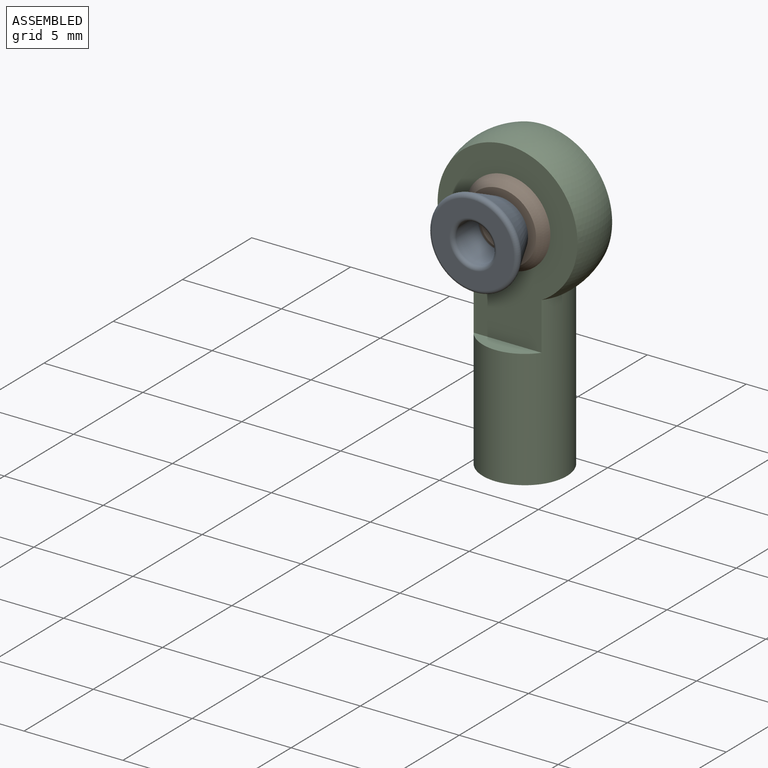
[diagram: assembled view]
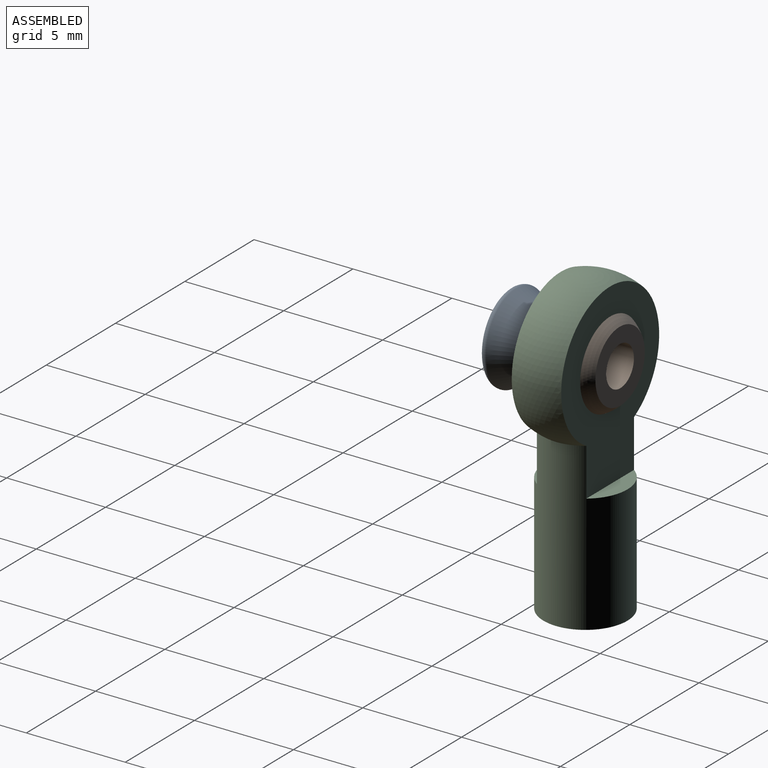
[diagram: assembled view, second angle]
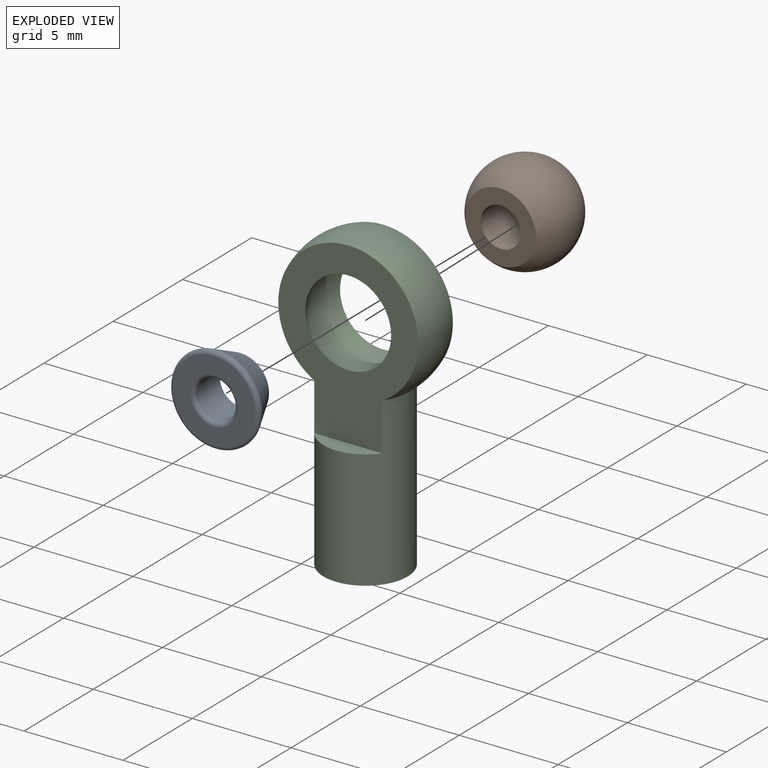
[diagram: exploded view]
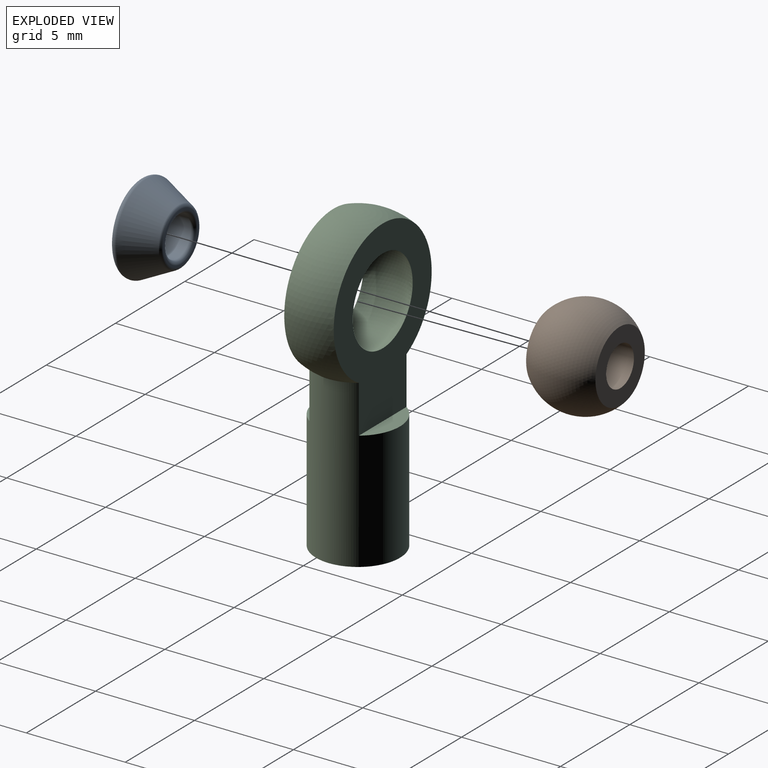
[diagram: exploded view, second angle]
FCSTD DOCUMENT  (FreeCAD 1.0R39285 (Git))
Label: M2RodEnd
License: All rights reserved
LicenseURL: http://en.wikipedia.org/wiki/All_rights_reserved
objects: App::Link×3, App::FeaturePython×3, Assembly::JointGroup×2, Assembly::AssemblyObject×2
EXTERNAL_REF file=RodEnds/M2RodEndBody.FCStd obj=Body
EXTERNAL_REF file=RodEnds/M2RodEndBall.FCStd obj=Body
EXTERNAL_REF file=RodEnds/HighAngleSpacers.FCStd obj=Body

FEATURE [App::Link] RodEndBody
  LinkPlacement = pos=(2.53768,2.53768,2.53768) rot=(0,0,1;0rad)
  LinkedObject = -> <external RodEnds/M2RodEndBody.FCStd>#Body
  Placement = pos=(2.53768,2.53768,2.53768) rot=(0,0,1;0rad)
FEATURE [App::Link] RodEndBall
  LinkPlacement = pos=(2.53768,2.53768,9.83258) rot=(0.020898,0.712821,-0.701035;3.09814rad)
  LinkedObject = -> <external RodEnds/M2RodEndBall.FCStd>#Body
  Placement = pos=(2.53768,2.53768,9.83258) rot=(0.020898,0.712821,-0.701035;3.09814rad)
FEATURE [App::FeaturePython] GroundedJoint  # Assembly grounded joint (typed FeaturePython)
  ObjectToGround = -> RodEndBody
  Placement = pos=(2.53768,2.53768,2.53768) rot=(0,0,1;0rad)
FEATURE [App::FeaturePython] Joint  label="Ball"  # Assembly joint (typed FeaturePython)
  Activated = true
  AngleMax = 0
  AngleMin = 0
  Detach1 = false
  Detach2 = false
  Distance = 0
  Distance2 = 0
  EnableAngleMax = false
  EnableAngleMin = false
  EnableLengthMax = false
  EnableLengthMin = false
  JointType = 4 (Ball)
  LengthMax = 0
  LengthMin = 0
  Placement1 = pos=(0,0,0) rot=(-0.707107,-0.707107,0;3.14159rad)
  Placement2 = pos=(-4.9e-15,8.4e-15,7.2949) rot=(0,0,1;1.5708rad)
  Reference1 = -> Assembly [RodEndBall.Revolution.Face4,RodEndBall.Revolution.Face4]
  Reference2 = -> Assembly [RodEndBody.Pocket.Face10,RodEndBody.Pocket.Face10]
FEATURE [App::Link] M2RodEnd
  LinkPlacement = pos=(2.54229,-0.211935,9.78688) rot=(-0.55766,0.591346,-0.582516;4.14342rad)
  LinkedObject = -> <external RodEnds/HighAngleSpacers.FCStd>#Body
  Placement = pos=(2.54229,-0.211935,9.78688) rot=(-0.55766,0.591346,-0.582516;4.14342rad)
FEATURE [Assembly::JointGroup] Joints001
FEATURE [Assembly::AssemblyObject] Assembly001
  Group = -> [Joints001]
  Origin = -> Origin001
  Type = Assembly
FEATURE [App::FeaturePython] Joint001  label="Fixed"  # Assembly joint (typed FeaturePython)
  Activated = true
  AngleMax = 0
  AngleMin = 0
  Detach1 = false
  Detach2 = false
  Distance = 0
  Distance2 = 0
  EnableAngleMax = false
  EnableAngleMin = false
  EnableLengthMax = false
  EnableLengthMin = false
  JointType = 0 (Fixed)
  LengthMax = 0
  LengthMin = 0
  Placement1 = pos=(-1.8e-15,4e-16,-1) rot=(-1,0,0;3.14159rad)
  Placement2 = pos=(-4e-16,0,1.75) rot=(-0.707107,-0.707107,0;3.14159rad)
  Reference1 = -> Assembly [M2RodEnd.Fillet.Edge9,M2RodEnd.Fillet.Edge9]
  Reference2 = -> Assembly [RodEndBall.Revolution.Edge3,RodEndBall.Revolution.Edge3]
FEATURE [Assembly::JointGroup] Joints
  Group = -> [GroundedJoint,Joint,Joint001]
FEATURE [Assembly::AssemblyObject] Assembly
  Group = -> [Joints,RodEndBody,RodEndBall,GroundedJoint,Joint,M2RodEnd,Assembly001,Joint001]
  Origin = -> Origin
  Type = Assembly

RESOLVED EXTERNAL PARTS (link-assembly join: the EXTERNAL_REF files above that resolve inside this repo's crawl, each included once):
---- part RodEnds/HighAngleSpacers.FCStd = doc fcstd_632f4d2fc16f ----
FCSTD DOCUMENT  (FreeCAD 1.0R39285 (Git))
Label: HighAngleSpacers
License: All rights reserved
LicenseURL: https://en.wikipedia.org/wiki/All_rights_reserved
objects: Sketcher::SketchObject×1, PartDesign::Revolution×1, PartDesign::Fillet×1, PartDesign::Body×1
note: 9 computed .brp shape members not serialized (recipe doc carries the construction recipe); baked Part::Feature solids carry a one-line shape summary decoded from their .brp

FEATURE [Sketcher::SketchObject] Sketch
  ArcFitTolerance = 1e-06
  AttachmentSupport = -> [XZ_Plane]
  FullyConstrained = true
  MakeInternals = true
  MapMode = 5
  Placement = pos=(0,0,0) rot=(1,0,0;1.5708rad)
  sketch-geometry (4):
    g0: LineSegment StartX=1 StartY=1 StartZ=0 EndX=1 EndY=-1 EndZ=0
    g1: LineSegment StartX=1 StartY=-1 StartZ=0 EndX=1.4 EndY=-1 EndZ=0
    g2: LineSegment StartX=1 StartY=1 StartZ=0 EndX=2.375 EndY=1 EndZ=0
    g3: LineSegment StartX=1.4 StartY=-1 StartZ=0 EndX=2.375 EndY=1 EndZ=0
  constraints (11):
    c: Coincident(g0,g1)
    c: Symmetric(g0,g0,g-1)
    c: Horizontal(g1)
    c: DistanceX(g-1,g0) = 1
    c: DistanceY(g0,g0) = 2
    c: Coincident(g2,g0)
    c: Horizontal(g2)
    c: Coincident(g3,g1)
    c: Coincident(g3,g2)
    c: DistanceX(g-1,g2) = 2.375
    c: DistanceX(g1,g1) = 0.4
FEATURE [PartDesign::Revolution] Revolution
  Angle = 360
  Angle2 = 60
  Axis = (0,2e-16,1)
  Base = (0,0,0)
  Placement = pos=(0,0,0) rot=(1,0,0;1.5708rad)
  Profile = -> Sketch
  ReferenceAxis = -> Sketch [V_Axis]
  Reversed = true
  Suppressed = false
  Type = 0
FEATURE [PartDesign::Fillet] Fillet
  Base = -> Revolution [Edge1,Edge5,Edge4,Edge2]
  BaseFeature = -> Revolution
  Placement = pos=(0,0,0) rot=(1,0,0;1.5708rad)
  Radius = 0.2
  SupportTransform = false
  Suppressed = false
  UseAllEdges = false
FEATURE [PartDesign::Body] Body  label="M2RodEnd"
  AllowCompound = false
  Group = -> [Sketch,Revolution,Fillet]
  Origin = -> Origin
  Tip = -> Fillet
---- part RodEnds/M2RodEndBall.FCStd = doc fcstd_30ed2205a75f ----
FCSTD DOCUMENT  (FreeCAD 1.0R39109 (Git))
Label: M2RodEndBall
License: All rights reserved
LicenseURL: http://en.wikipedia.org/wiki/All_rights_reserved
objects: Sketcher::SketchObject×1, PartDesign::Revolution×1, PartDesign::Body×1, App::Link×1
note: 6 computed .brp shape members not serialized (recipe doc carries the construction recipe); baked Part::Feature solids carry a one-line shape summary decoded from their .brp
EXTERNAL_REF file=../../Dimentions.FCStd obj=dd

FEATURE [Sketcher::SketchObject] Sketch
  ArcFitTolerance = 1e-06
  AttachmentSupport = -> [YZ_Plane]
  FullyConstrained = true
  MakeInternals = false
  MapMode = 5
  Placement = pos=(0,0,0) rot=(0.57735,0.57735,0.57735;2.0944rad)
  expr: .Constraints.BallDiameter = <<M2RodEnd>>.BallDiameter
  expr: .Constraints.BallThickness = <<M2RodEnd>>.BallThickness
  expr: .Constraints.HoleDiameter = <<M2RodEnd>>.HoleDiameter
  sketch-geometry (10):
    g0: LineSegment StartX=1 StartY=1.75 StartZ=0 EndX=1.78536 EndY=1.75 EndZ=0
    g1: LineSegment [constr] StartX=1.78536 StartY=1.75 StartZ=0 EndX=1.78536 EndY=-1.75 EndZ=0
    g2: LineSegment StartX=1.78536 StartY=-1.75 StartZ=0 EndX=1 EndY=-1.75 EndZ=0
    g3: LineSegment StartX=1 StartY=-1.75 StartZ=0 EndX=1 EndY=1.75 EndZ=0
    g4: LineSegment [constr] StartX=-1 StartY=1.75 StartZ=0 EndX=-1.78536 EndY=1.75 EndZ=0
    g5: LineSegment [constr] StartX=-1.78536 StartY=1.75 StartZ=0 EndX=-1.78536 EndY=-1.75 EndZ=0
    g6: LineSegment [constr] StartX=-1.78536 StartY=-1.75 StartZ=0 EndX=-1 EndY=-1.75 EndZ=0
    g7: ArcOfCircle CenterX=0 CenterY=0 CenterZ=0 NormalX=0 NormalY=0 NormalZ=1 AngleXU=0 Radius=2.5 StartAngle=5.50779 EndAngle=7.05858
    g8: ArcOfCircle [constr] CenterX=0 CenterY=0 CenterZ=0 NormalX=0 NormalY=0 NormalZ=1 AngleXU=0 Radius=2.5 StartAngle=2.3662 EndAngle=3.91699
    g9: LineSegment [constr] StartX=-1 StartY=-1.75 StartZ=0 EndX=-1 EndY=1.75 EndZ=0
  constraints (26):
    c: Coincident(g0,g1)
    c: Coincident(g1,g2)
    c: Horizontal(g0)
    c: Horizontal(g2)
    c: Symmetric(g2,g0,g-1)
    c: Coincident(g4,g5)
    c: Coincident(g5,g6)
    c: Horizontal(g4)
    c: Horizontal(g6)
    c: Equal(g6,g2)
    c: Vertical(g5)
    c: Coincident(g7,g-1)
    c: Coincident(g8,g7)
    c: Diameter(g7) = 5  'BallDiameter'
    c: Coincident(g7,g0)
    c: Coincident(g2,g7)
    c: Coincident(g8,g5)
    c: Symmetric(g4,g0,g-2)
    c: Coincident(g3,g0)
    c: Coincident(g8,g4)
    c: Coincident(g3,g2)
    c: Equal(g4,g0)
    c: DistanceX(g4,g0) = 2  'HoleDiameter'
    c: Coincident(g9,g6)
    c: Coincident(g9,g4)
    c: DistanceY(g2,g0) = 3.5  'BallThickness'
FEATURE [PartDesign::Revolution] Revolution
  Angle = 360
  Angle2 = 60
  Axis = (0,0,1)
  Base = (0,0,0)
  Placement = pos=(0,0,0) rot=(0.57735,0.57735,0.57735;2.0944rad)
  Profile = -> Sketch
  ReferenceAxis = -> Sketch [V_Axis]
  Reversed = true
  Suppressed = false
  Type = 0
FEATURE [PartDesign::Body] Body  label="RodEndBall"
  AllowCompound = false
  Group = -> [Sketch,Revolution]
  Origin = -> Origin
  Tip = -> Revolution
FEATURE [App::Link] Link001  label="M2RodEnd"
  LinkedObject = -> <external ../../Dimentions.FCStd>#dd
---- part RodEnds/M2RodEndBody.FCStd = doc fcstd_81984d177e81 ----
FCSTD DOCUMENT  (FreeCAD 1.0R39109 (Git))
Label: M2RodEndBody
License: All rights reserved
LicenseURL: http://en.wikipedia.org/wiki/All_rights_reserved
objects: Sketcher::SketchObject×2, PartDesign::Revolution×1, PartDesign::Pocket×1, PartDesign::Body×1, App::Link×1
note: 11 computed .brp shape members not serialized (recipe doc carries the construction recipe); baked Part::Feature solids carry a one-line shape summary decoded from their .brp
EXTERNAL_REF file=../../Dimentions.FCStd obj=dd

FEATURE [Sketcher::SketchObject] Sketch
  ArcFitTolerance = 1e-06
  AttachmentSupport = -> [YZ_Plane]
  FullyConstrained = true
  MakeInternals = false
  MapMode = 5
  Placement = pos=(0,0,0) rot=(0.57735,0.57735,0.57735;2.0944rad)
  expr: .Constraints.BallDiameter = <<M2RodEnd>>.BallDiameter
  expr: .Constraints.BoltHole = <<M2RodEnd>>.HoleDiameter
  expr: .Constraints.HeadDiameter = <<M2RodEnd>>.HeadDiameter
  expr: .Constraints.ShaftDiameter = <<M2RodEnd>>.ShaftDiameter
  expr: .Constraints.TotalLength = <<M2RodEnd>>.TotalLength
  sketch-geometry (18):
    g0: LineSegment StartX=2.125 StartY=-4.2051 StartZ=0 EndX=2.125 EndY=4.2051 EndZ=0
    g1: LineSegment [constr] StartX=2.125 StartY=4.2051 StartZ=0 EndX=-2.125 EndY=4.2051 EndZ=0
    g2: LineSegment [constr] StartX=-2.125 StartY=4.2051 StartZ=0 EndX=-2.125 EndY=-4.2051 EndZ=0
    g3: Circle [constr] CenterX=9.2e-15 CenterY=-7.2949 CenterZ=0 NormalX=0 NormalY=0 NormalZ=1 AngleXU=0 Radius=3.75
    g4: LineSegment [constr] StartX=-2.125 StartY=-4.2051 StartZ=0 EndX=-1 EndY=-4.2051 EndZ=0
    g5: LineSegment [constr] StartX=-1 StartY=-4.2051 StartZ=0 EndX=-1 EndY=3.0801 EndZ=0
    g6: LineSegment StartX=1 StartY=3.0801 StartZ=0 EndX=1 EndY=-4.2051 EndZ=0
    g7: LineSegment StartX=1 StartY=-4.2051 StartZ=0 EndX=2.125 EndY=-4.2051 EndZ=0
    g8: LineSegment [constr] StartX=1 StartY=4.2051 StartZ=0 EndX=1 EndY=3.0801 EndZ=0
    g9: LineSegment [constr] StartX=1 StartY=3.0801 StartZ=0 EndX=2.125 EndY=3.0801 EndZ=0
    g10: ArcOfCircle CenterX=9.2e-15 CenterY=7.2949 CenterZ=0 NormalX=0 NormalY=0 NormalZ=1 AngleXU=0 Radius=2.5 StartAngle=4.71239 EndAngle=7.85398
    g11: ArcOfCircle [constr] CenterX=3.34022e-07 CenterY=7.2949 CenterZ=0 NormalX=0 NormalY=0 NormalZ=1 AngleXU=0 Radius=2.5 StartAngle=1.5708 EndAngle=4.71239
    g12: ArcOfCircle CenterX=9.2e-15 CenterY=7.2949 CenterZ=0 NormalX=0 NormalY=0 NormalZ=1 AngleXU=0 Radius=3.75 StartAngle=5.31484 EndAngle=7.85398
    g13: ArcOfCircle [constr] CenterX=9.2e-15 CenterY=7.2949 CenterZ=0 NormalX=0 NormalY=0 NormalZ=1 AngleXU=0 Radius=3.75 StartAngle=1.5708 EndAngle=4.10993
    g14: LineSegment [constr] StartX=-1 StartY=3.0801 StartZ=0 EndX=-4e-16 EndY=3.0801 EndZ=0
    g15: LineSegment StartX=-4e-16 StartY=3.0801 StartZ=0 EndX=1 EndY=3.0801 EndZ=0
    g16: LineSegment StartX=4e-16 StartY=11.0449 StartZ=0 EndX=2e-16 EndY=9.7949 EndZ=0
    g17: LineSegment StartX=-4e-16 StartY=4.7949 StartZ=0 EndX=-4e-16 EndY=3.0801 EndZ=0
  constraints (50):
    c: Coincident(g0,g1)
    c: Coincident(g1,g2)
    c: Horizontal(g1)
    c: Vertical(g0)
    c: Vertical(g2)
    c: Symmetric(g2,g0,g-2)
    c: DistanceX(g2,g0) = 4.25  'ShaftDiameter'
    c: PointOnObject(g0,g3)
    c: Coincident(g2,g4)
    c: Horizontal(g4)
    c: Coincident(g4,g5)
    c: Vertical(g5)
    c: Vertical(g6)
    c: Coincident(g6,g7)
    c: Coincident(g7,g0)
    c: Horizontal(g7)
    c: Symmetric(g5,g6,g-2)
    c: PointOnObject(g8,g1)
    c: PointOnObject(g9,g0)
    c: Horizontal(g9)
    c: Vertical(g8)
    c: Equal(g8,g9)
    c: DistanceX(g4,g6) = 2  'BoltHole'
    c: PointOnObject(g10,g-2)
    c: Coincident(g11,g10)
    c: Coincident(g11,g10)
    c: Diameter(g10) = 5  'BallDiameter'
    c: Coincident(g12,g10)
    c: Coincident(g12,g0)
    c: PointOnObject(g12,g-2)
    c: Coincident(g13,g10)
    c: Coincident(g13,g12)
    c: Coincident(g13,g1)
    c: Diameter(g12) = 7.5  'HeadDiameter'
    c: Coincident(g14,g5)
    c: PointOnObject(g14,g-2)
    c: Coincident(g15,g14)
    c: Coincident(g15,g6)
    c: Horizontal(g15)
    c: Coincident(g6,g8)
    c: Coincident(g9,g6)
    c: DistanceY(g4,g12) = 15.25  'TotalLength'
    c: Coincident(g16,g12)
    c: Coincident(g16,g10)
    c: Coincident(g17,g10)
    c: Coincident(g17,g15)
    c: Symmetric(g10,g3,g-1)
    c: Equal(g3,g12)
    c: Vertical(g17)
    c: Equal(g11,g10)
FEATURE [PartDesign::Revolution] Revolution
  Angle = 360
  Angle2 = 60
  Axis = (-3e-16,3e-16,1)
  Base = (0,0,0)
  Placement = pos=(0,0,0) rot=(0.57735,0.57735,0.57735;2.0944rad)
  Profile = -> Sketch
  ReferenceAxis = -> Z_Axis
  Suppressed = false
  Type = 0
FEATURE [Sketcher::SketchObject] Sketch001
  ArcFitTolerance = 1e-06
  AttachmentSupport = -> [YZ_Plane]
  FullyConstrained = true
  MakeInternals = false
  MapMode = 5
  Placement = pos=(0,0,0) rot=(0.57735,0.57735,0.57735;2.0944rad)
  expr: .Constraints.HeadThickness = <<M2RodEnd>>.HeadThickness
  expr: Constraints[30] = <<M2RodEnd>>.NonFlatShaftLength
  sketch-geometry (12):
    g0: LineSegment StartX=1.25 StartY=12.7949 StartZ=0 EndX=12.25 EndY=12.7949 EndZ=0
    g1: LineSegment StartX=12.25 StartY=12.7949 StartZ=0 EndX=12.25 EndY=1.7949 EndZ=0
    g2: LineSegment StartX=12.25 StartY=1.7949 StartZ=0 EndX=1.25 EndY=1.7949 EndZ=0
    g3: LineSegment StartX=1.25 StartY=1.7949 StartZ=0 EndX=1.25 EndY=12.7949 EndZ=0
    g4: LineSegment StartX=-12.25 StartY=12.7949 StartZ=0 EndX=-1.25 EndY=12.7949 EndZ=0
    g5: LineSegment StartX=-1.25 StartY=12.7949 StartZ=0 EndX=-1.25 EndY=1.7949 EndZ=0
    g6: LineSegment StartX=-1.25 StartY=1.7949 StartZ=0 EndX=-12.25 EndY=1.7949 EndZ=0
    g7: LineSegment StartX=-12.25 StartY=1.7949 StartZ=0 EndX=-12.25 EndY=12.7949 EndZ=0
    g8: LineSegment [constr] StartX=-1.25 StartY=12.7949 StartZ=0 EndX=1.25 EndY=12.7949 EndZ=0
    g9: LineSegment [constr] StartX=-1.25 StartY=1.7949 StartZ=0 EndX=1.25 EndY=1.7949 EndZ=0
    g10: LineSegment [constr] StartX=-1.25 StartY=12.7949 StartZ=0 EndX=9.1e-15 EndY=7.2949 EndZ=0
    g11: LineSegment [constr] StartX=-1.25 StartY=1.7949 StartZ=0 EndX=9.1e-15 EndY=7.2949 EndZ=0
  constraints (31):
    c: Coincident(g0,g1)
    c: Coincident(g1,g2)
    c: Coincident(g2,g3)
    c: Coincident(g3,g0)
    c: Horizontal(g0)
    c: Horizontal(g2)
    c: Vertical(g1)
    c: Vertical(g3)
    c: Coincident(g4,g5)
    c: Coincident(g5,g6)
    c: Coincident(g6,g7)
    c: Coincident(g7,g4)
    c: Horizontal(g4)
    c: Horizontal(g6)
    c: Vertical(g5)
    c: Vertical(g7)
    c: Coincident(g8,g4)
    c: Coincident(g8,g0)
    c: Symmetric(g4,g0,g-2)
    c: Coincident(g9,g5)
    c: Coincident(g9,g2)
    c: Horizontal(g9)
    c: Coincident(g4,g10)
    c: Coincident(g10,g-3)
    c: Coincident(g5,g11)
    c: Coincident(g11,g-3)
    c: Equal(g10,g11)
    c: DistanceX(g8,g8) = 2.5  'HeadThickness'
    c: Equal(g0,g4)
    c: Equal(g3,g2)
    c: DistanceY(g-4,g2) = 6
FEATURE [PartDesign::Pocket] Pocket
  BaseFeature = -> Revolution
  Direction = (-1,0,0)
  Length = 5
  Length2 = 100
  Midplane = true
  Placement = pos=(0,0,0) rot=(0.57735,0.57735,0.57735;2.0944rad)
  Profile = -> Sketch001
  Suppressed = false
  Type = 1
FEATURE [PartDesign::Body] Body  label="RodEndBody"
  AllowCompound = false
  Group = -> [Sketch,Revolution,Sketch001,Pocket]
  Origin = -> Origin
  Tip = -> Pocket
FEATURE [App::Link] Link001  label="M2RodEnd"
  LinkedObject = -> <external ../../Dimentions.FCStd>#dd
